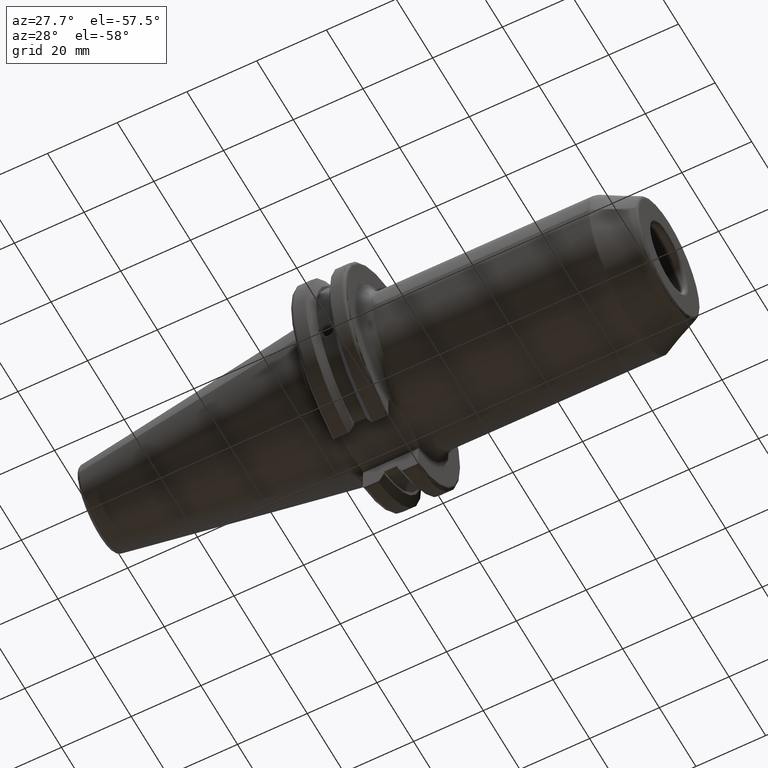
[diagram: clean part render]
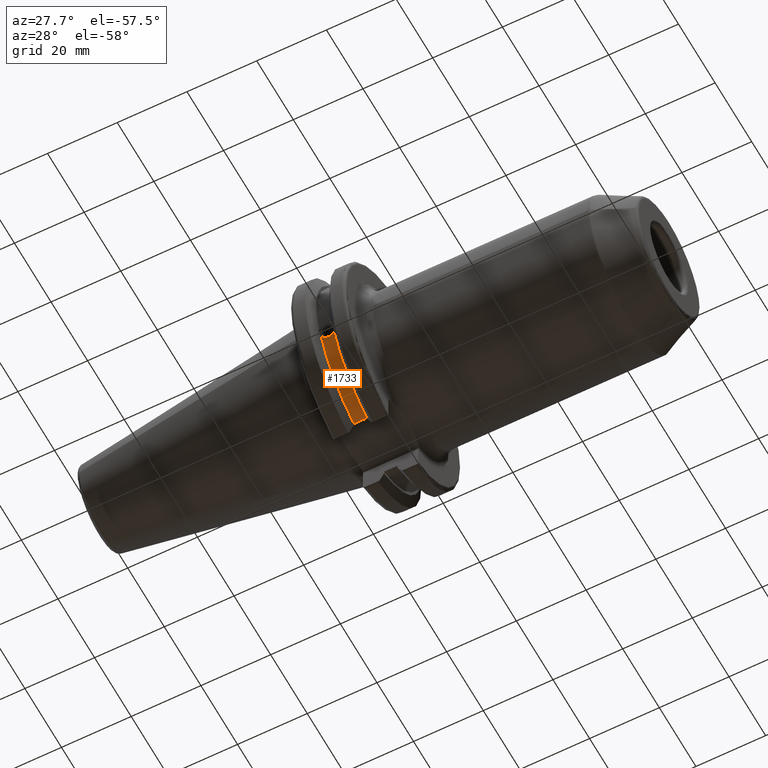
[diagram: same view with one face highlighted and labeled with its STEP entity id]
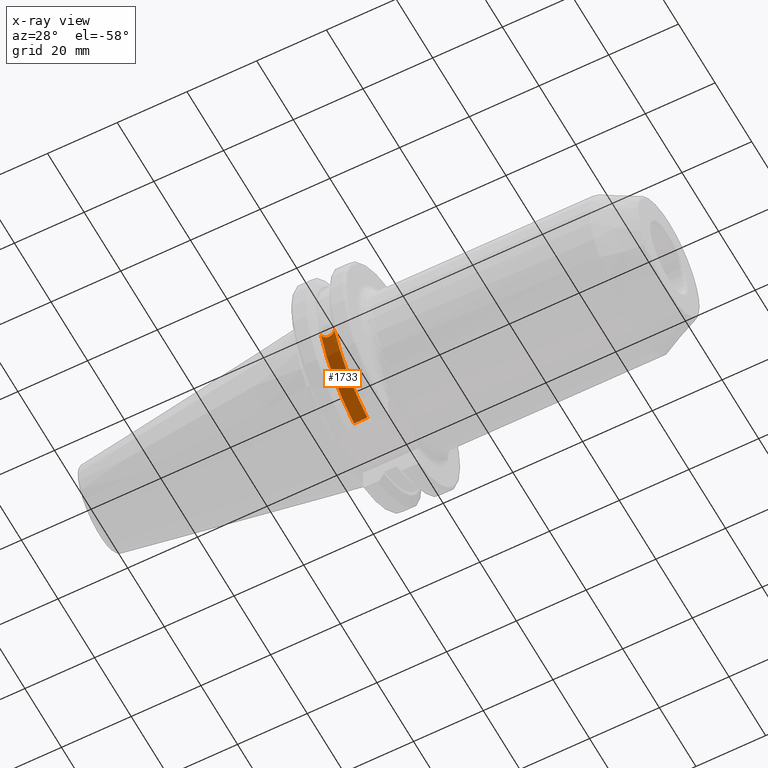
[diagram: x-ray of the same camera — body ghosted, the highlighted face saturated]
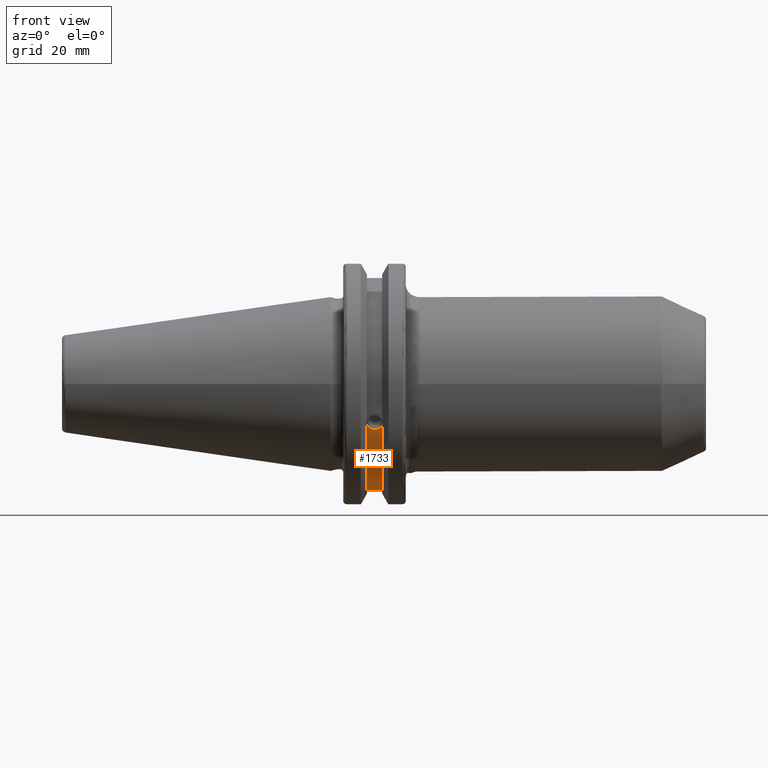
[diagram: same view with one face highlighted and labeled with its STEP entity id]
A machine part, auxiliary view. The second image highlights one B-rep face of the part: STEP entity #1733.
The next image is the same camera in x-ray: the body ghosted, the highlighted face saturated — about 0% of this face is hidden behind the body in this view.
A second angle (front view) of the same face is appended — the face is thin or edge-on in the first view.
In plain terms, the highlighted cylindrical surface (partial cylindrical patch) has radius 28.15 mm, axis along (1, 0, 0).
Its self-contained STEP definition (entity closure, byte-faithful):
#154=FACE_OUTER_BOUND('',#250,.T.);
#250=EDGE_LOOP('',(#1307,#1308,#1309,#1310));
#340=B_SPLINE_CURVE_WITH_KNOTS('',3,(#2919,#2920,#2921,#2922,#2923,#2924,
#2925,#2926,#2927,#2928,#2929,#2930,#2931,#2932,#2933),.UNSPECIFIED.,.F.,
 .F.,(4,2,2,3,2,2,4),(-0.231446873660085,-0.158271583089134,-0.0791357915445672,
0.,0.0791357915445671,0.158271583089134,0.231446873660466),
 .UNSPECIFIED.);
#391=LINE('',#2997,#481);
#481=VECTOR('',#2238,10.);
#595=CIRCLE('',#1901,28.15);
#596=CIRCLE('',#1903,28.15);
#724=VERTEX_POINT('',#2916);
#725=VERTEX_POINT('',#2918);
#741=VERTEX_POINT('',#2991);
#742=VERTEX_POINT('',#2995);
#936=EDGE_CURVE('',#725,#724,#340,.T.);
#957=EDGE_CURVE('',#725,#741,#595,.T.);
#959=EDGE_CURVE('',#724,#742,#596,.T.);
#960=EDGE_CURVE('',#742,#741,#391,.T.);
#1307=ORIENTED_EDGE('',*,*,#936,.T.);
#1308=ORIENTED_EDGE('',*,*,#959,.T.);
#1309=ORIENTED_EDGE('',*,*,#960,.T.);
#1310=ORIENTED_EDGE('',*,*,#957,.F.);
#1689=CYLINDRICAL_SURFACE('',#1902,28.15);
#1733=ADVANCED_FACE('',(#154),#1689,.T.);
#1901=AXIS2_PLACEMENT_3D('',#2992,#2231,#2232);
#1902=AXIS2_PLACEMENT_3D('',#2994,#2234,#2235);
#1903=AXIS2_PLACEMENT_3D('',#2996,#2236,#2237);
#2231=DIRECTION('center_axis',(1.,0.,0.));
#2232=DIRECTION('ref_axis',(0.,0.,-1.));
#2234=DIRECTION('center_axis',(1.,0.,0.));
#2235=DIRECTION('ref_axis',(0.,1.,0.));
#2236=DIRECTION('center_axis',(1.,0.,0.));
#2237=DIRECTION('ref_axis',(0.,0.,-1.));
#2238=DIRECTION('',(1.,0.,0.));
#2916=CARTESIAN_POINT('',(9.2191,-26.1451788594704,-10.4332220529567));
#2918=CARTESIAN_POINT('',(13.0491,-26.1451788594704,-10.4332220529567));
#2919=CARTESIAN_POINT('Ctrl Pts',(13.0491,-26.1451788594704,-10.4332220529567));
#2920=CARTESIAN_POINT('Ctrl Pts',(12.9428694290343,-26.0576536126147,-10.6525563316815));
#2921=CARTESIAN_POINT('Ctrl Pts',(12.791379862294,-25.9751489313128,-10.8509873904882));
#2922=CARTESIAN_POINT('Ctrl Pts',(12.4326293734259,-25.8346412777187,-11.1816210830117));
#2923=CARTESIAN_POINT('Ctrl Pts',(12.1965549887012,-25.7695111693635,-11.3298867884858));
#2924=CARTESIAN_POINT('Ctrl Pts',(11.6791874573612,-25.6822868299377,-11.5262389251846));
#2925=CARTESIAN_POINT('Ctrl Pts',(11.3978859718152,-25.6603958057616,-11.5743935949859));
#2926=CARTESIAN_POINT('Ctrl Pts',(11.1341,-25.6603958057616,-11.5743935949859));
#2927=CARTESIAN_POINT('Ctrl Pts',(10.8703140281848,-25.6603958057616,-11.5743935949859));
#2928=CARTESIAN_POINT('Ctrl Pts',(10.5890125426388,-25.6822868299377,-11.5262389251846));
#2929=CARTESIAN_POINT('Ctrl Pts',(10.0716450112988,-25.7695111693635,-11.3298867884858));
#2930=CARTESIAN_POINT('Ctrl Pts',(9.83557062657411,-25.8346412777187,-11.1816210830117));
#2931=CARTESIAN_POINT('Ctrl Pts',(9.4768201377051,-25.9751489313131,-10.8509873904873));
#2932=CARTESIAN_POINT('Ctrl Pts',(9.32533057097183,-26.0576536126096,-10.6525563316942));
#2933=CARTESIAN_POINT('Ctrl Pts',(9.2191,-26.1451788594704,-10.4332220529567));
#2991=CARTESIAN_POINT('',(13.0491,-8.19,-26.932255754021));
#2992=CARTESIAN_POINT('Origin',(13.0491,0.,0.));
#2994=CARTESIAN_POINT('Origin',(11.1341,0.,0.));
#2995=CARTESIAN_POINT('',(9.2191,-8.19,-26.932255754021));
#2996=CARTESIAN_POINT('Origin',(9.2191,0.,0.));
#2997=CARTESIAN_POINT('',(11.1341,-8.19,-26.932255754021));